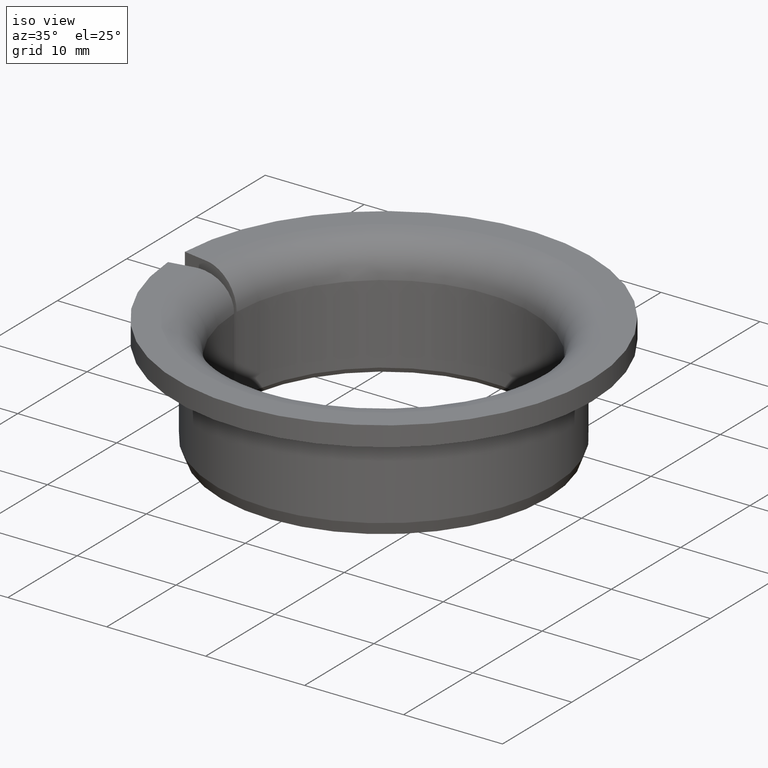
[diagram: clean part render]
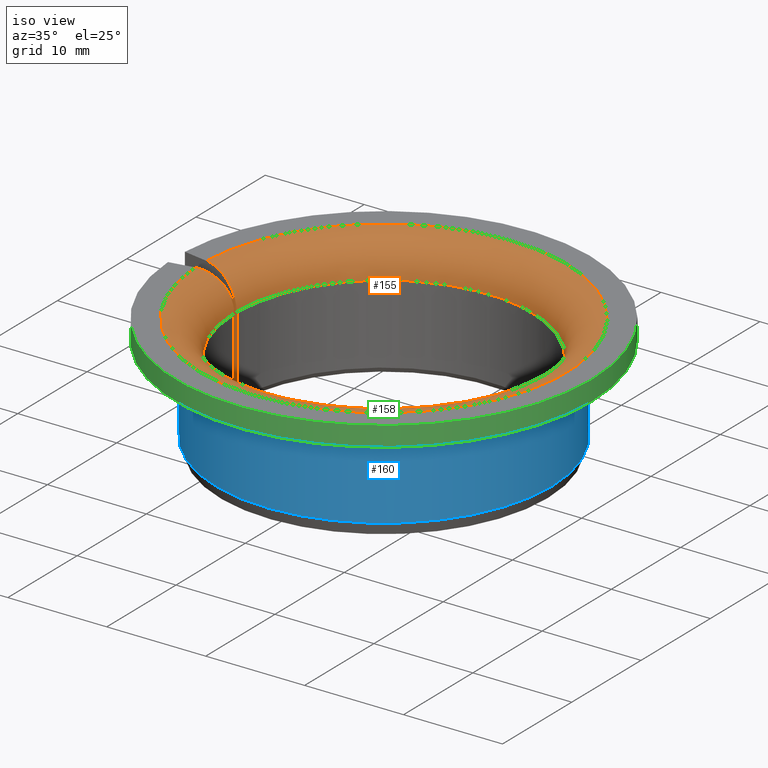
[diagram: same view with three faces highlighted in distinct colors, each labeled with its STEP entity id]
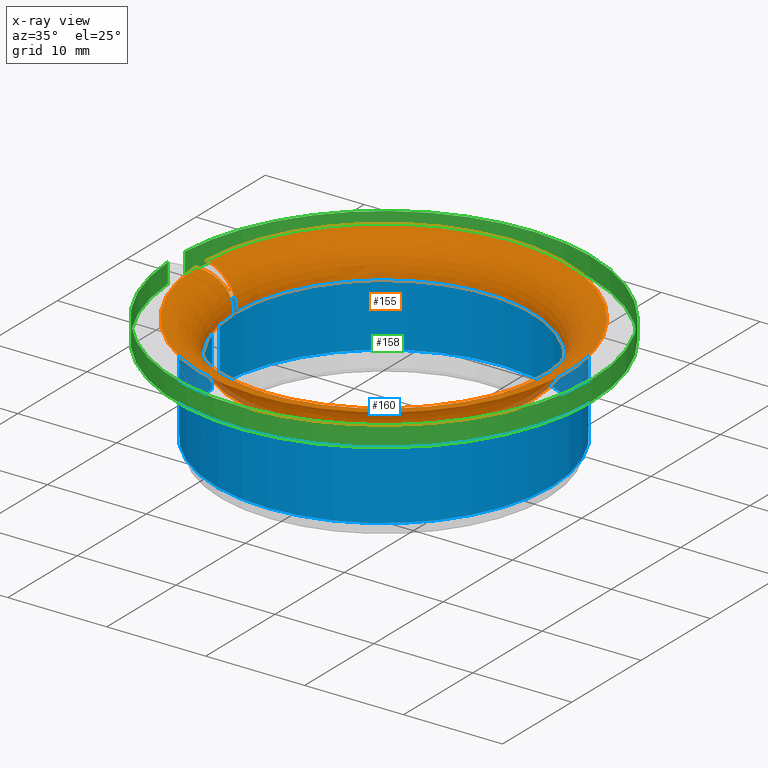
[diagram: x-ray of the same camera — body ghosted, the three highlighted faces saturated]
A machine part, iso view with three faces highlighted in distinct colors.
The next image is the same camera in x-ray (body ghosted, the three faces saturated) — at least one of them is partly hidden behind the body in this view.
Their STEP definitions:

[orange] entity #155 — the highlighted toroidal blend (fillet) surface has major radius 18.5 mm and minor (blend) radius 3.5 mm.
#155=ADVANCED_FACE('',(#171),#172,.T.);
#171=FACE_OUTER_BOUND('',#196,.T.);
#172=TOROIDAL_SURFACE('',#197,0.0185,0.0035);
#196=EDGE_LOOP('',(#236,#237,#238,#239));
#197=AXIS2_PLACEMENT_3D('',#240,#241,#242);
#236=ORIENTED_EDGE('',*,*,#325,.T.);
#237=ORIENTED_EDGE('',*,*,#326,.T.);
#238=ORIENTED_EDGE('',*,*,#327,.F.);
#239=ORIENTED_EDGE('',*,*,#312,.F.);
#240=CARTESIAN_POINT('',(0.0,0.0,0.0085));
#241=DIRECTION('',(0.0,-6.12323399573677E-017,-1.0));
#242=DIRECTION('',(0.0,1.0,-6.12323399573677E-017));
#312=EDGE_CURVE('',#342,#343,#344,.T.);
#325=EDGE_CURVE('',#342,#367,#368,.T.);
#326=EDGE_CURVE('',#367,#369,#370,.T.);
#327=EDGE_CURVE('',#343,#369,#371,.T.);
#342=VERTEX_POINT('',#392);
#343=VERTEX_POINT('',#393);
#344=B_SPLINE_CURVE_WITH_KNOTS('',3,(#394,#395,#396,#397,#398,#399,#400,#401,#402,#403,#404,#405,#406,#407,#408,#409,#410,#411),.UNSPECIFIED.,.F.,.F.,(4,2,2,2,2,2,2,2,4),(1.97144236282137E-007,0.000687247596506066,0.00137429804877585,0.00206134850104563,0.00274839895331542,0.00343544940558521,0.00412249985785499,0.00480955031012478,0.00549660076239457),.UNSPECIFIED.);
#367=VERTEX_POINT('',#462);
#368=CIRCLE('',#463,0.015);
#369=VERTEX_POINT('',#464);
#370=B_SPLINE_CURVE_WITH_KNOTS('',3,(#465,#466,#467,#468,#469,#470,#471,#472,#473,#474,#475,#476,#477,#478,#479,#480,#481,#482),.UNSPECIFIED.,.F.,.F.,(4,2,2,2,2,2,2,2,4),(1.97144236282137E-007,0.000687247596506066,0.00137429804877585,0.00206134850104563,0.00274839895331542,0.00343544940558521,0.00412249985785499,0.00480955031012478,0.00549660076239457),.UNSPECIFIED.);
#371=CIRCLE('',#483,0.0185);
#392=CARTESIAN_POINT('',(0.0149989657335363,-0.000176144611625668,0.0085));
#393=CARTESIAN_POINT('',(0.0184831036944218,-0.000790492138640356,0.012));
#394=CARTESIAN_POINT('',(0.0149989657335363,-0.000176144611625669,0.0085));
#395=CARTESIAN_POINT('',(0.0149989657335363,-0.000176144611625669,0.00873233312745845));
#396=CARTESIAN_POINT('',(0.0150218251591391,-0.000180175345122953,0.00896070174709985));
#397=CARTESIAN_POINT('',(0.0151113105902479,-0.000195954041007761,0.00940984855295852));
#398=CARTESIAN_POINT('',(0.0151790704267163,-0.00020790192838552,0.00963300694570902));
#399=CARTESIAN_POINT('',(0.01535538900741,-0.000238991651362049,0.0100575433301665));
#400=CARTESIAN_POINT('',(0.0154631871915511,-0.000257999379697507,0.0102587635129356));
#401=CARTESIAN_POINT('',(0.0157175991445166,-0.000302859071220061,0.0106393678753234));
#402=CARTESIAN_POINT('',(0.0158652095137595,-0.000328886761949921,0.0108189869323458));
#403=CARTESIAN_POINT('',(0.0161870816681597,-0.000385641507109437,0.0111407423658677));
#404=CARTESIAN_POINT('',(0.0163625899243057,-0.000416588348005069,0.0112851110798836));
#405=CARTESIAN_POINT('',(0.0167434554889728,-0.000483745223078637,0.0115400321452818));
#406=CARTESIAN_POINT('',(0.0169448821256551,-0.000519262173759086,0.011647659050552));
#407=CARTESIAN_POINT('',(0.0173623716562547,-0.000592876842167113,0.0118211775577084));
#408=CARTESIAN_POINT('',(0.0175811168932857,-0.000631447529357148,0.0118880550374962));
#409=CARTESIAN_POINT('',(0.0180283854044057,-0.000710313035488916,0.0119775223235684));
#410=CARTESIAN_POINT('',(0.0182544947009641,-0.000750182205061158,0.012));
#411=CARTESIAN_POINT('',(0.0184831036944218,-0.000790492138640355,0.012));
#462=CARTESIAN_POINT('',(0.0149989657335363,0.000176144611625669,0.0085));
#463=AXIS2_PLACEMENT_3D('',#538,#539,#540);
#464=CARTESIAN_POINT('',(0.0184831036944218,0.000790492138640358,0.012));
#465=CARTESIAN_POINT('',(0.0149989657335363,0.000176144611625669,0.0085));
#466=CARTESIAN_POINT('',(0.0149989657335363,0.000176144611625669,0.00873233312745845));
#467=CARTESIAN_POINT('',(0.0150218251591391,0.000180175345122953,0.00896070174709985));
#468=CARTESIAN_POINT('',(0.0151113105902479,0.000195954041007761,0.00940984855295852));
#469=CARTESIAN_POINT('',(0.0151790704267163,0.00020790192838552,0.00963300694570902));
#470=CARTESIAN_POINT('',(0.01535538900741,0.00023899165136205,0.0100575433301665));
#471=CARTESIAN_POINT('',(0.0154631871915511,0.000257999379697507,0.0102587635129356));
#472=CARTESIAN_POINT('',(0.0157175991445166,0.000302859071220061,0.0106393678753234));
#473=CARTESIAN_POINT('',(0.0158652095137595,0.000328886761949921,0.0108189869323458));
#474=CARTESIAN_POINT('',(0.0161870816681597,0.000385641507109437,0.0111407423658677));
#475=CARTESIAN_POINT('',(0.0163625899243057,0.000416588348005069,0.0112851110798836));
#476=CARTESIAN_POINT('',(0.0167434554889728,0.000483745223078637,0.0115400321452818));
#477=CARTESIAN_POINT('',(0.0169448821256551,0.000519262173759086,0.011647659050552));
#478=CARTESIAN_POINT('',(0.0173623716562547,0.000592876842167113,0.0118211775577084));
#479=CARTESIAN_POINT('',(0.0175811168932857,0.000631447529357148,0.0118880550374962));
#480=CARTESIAN_POINT('',(0.0180283854044057,0.000710313035488916,0.0119775223235684));
#481=CARTESIAN_POINT('',(0.0182544947009641,0.000750182205061157,0.012));
#482=CARTESIAN_POINT('',(0.0184831036944218,0.000790492138640354,0.012));
#483=AXIS2_PLACEMENT_3D('',#541,#542,#543);
#538=CARTESIAN_POINT('',(0.0,0.0,0.0085));
#539=DIRECTION('',(0.0,-6.12323399573677E-017,-1.0));
#540=DIRECTION('',(0.0,1.0,-6.12323399573677E-017));
#541=CARTESIAN_POINT('',(0.0,0.0,0.012));
#542=DIRECTION('',(0.0,-6.12323399573677E-017,-1.0));
#543=DIRECTION('',(0.0,1.0,-6.12323399573677E-017));

[blue] entity #160 — the highlighted cylindrical surface (partial cylindrical patch) has radius 17 mm, axis along (-0, 0, -1).
#160=ADVANCED_FACE('',(#181),#182,.T.);
#181=FACE_OUTER_BOUND('',#206,.T.);
#182=CYLINDRICAL_SURFACE('',#207,0.017);
#206=EDGE_LOOP('',(#271,#272,#273,#274));
#207=AXIS2_PLACEMENT_3D('',#275,#276,#277);
#271=ORIENTED_EDGE('',*,*,#330,.T.);
#272=ORIENTED_EDGE('',*,*,#336,.T.);
#273=ORIENTED_EDGE('',*,*,#337,.F.);
#274=ORIENTED_EDGE('',*,*,#317,.F.);
#275=CARTESIAN_POINT('',(0.0,0.0,0.0));
#276=DIRECTION('',(0.0,-6.12323399573677E-017,-1.0));
#277=DIRECTION('',(0.0,1.0,-6.12323399573677E-017));
#317=EDGE_CURVE('',#351,#353,#354,.T.);
#330=EDGE_CURVE('',#351,#374,#376,.T.);
#336=EDGE_CURVE('',#374,#384,#385,.T.);
#337=EDGE_CURVE('',#353,#384,#386,.T.);
#351=VERTEX_POINT('',#421);
#353=VERTEX_POINT('',#436);
#354=LINE('',#437,#438);
#374=VERTEX_POINT('',#486);
#376=CIRCLE('',#501,0.017);
#384=VERTEX_POINT('',#512);
#385=LINE('',#513,#514);
#386=CIRCLE('',#515,0.017);
#421=CARTESIAN_POINT('',(0.0169918128628631,-0.000527537328953403,0.0085));
#436=CARTESIAN_POINT('',(0.0169918128628632,-0.000527537328953403,0.0012));
#437=CARTESIAN_POINT('',(0.0169918128628631,-0.000527537328953403,1.78901200885371E-019));
#438=VECTOR('',#529,1.0);
#486=CARTESIAN_POINT('',(0.0169918128628631,0.000527537328953405,0.0085));
#501=AXIS2_PLACEMENT_3D('',#547,#548,#549);
#512=CARTESIAN_POINT('',(0.0169918128628631,0.000527537328953404,0.0012));
#513=CARTESIAN_POINT('',(0.0169918128628631,0.000527537328953404,-1.87878580240041E-019));
#514=VECTOR('',#559,1.0);
#515=AXIS2_PLACEMENT_3D('',#560,#561,#562);
#529=DIRECTION('',(0.0,-6.12323399573677E-017,-1.0));
#547=CARTESIAN_POINT('',(0.0,0.0,0.0085));
#548=DIRECTION('',(0.0,-6.12323399573677E-017,-1.0));
#549=DIRECTION('',(0.0,1.0,-6.12323399573677E-017));
#559=DIRECTION('',(0.0,-6.12323399573677E-017,-1.0));
#560=CARTESIAN_POINT('',(0.0,0.0,0.0012));
#561=DIRECTION('',(0.0,-6.12323399573677E-017,-1.0));
#562=DIRECTION('',(0.0,1.0,-6.12323399573677E-017));

[green] entity #158 — the highlighted cylindrical surface (partial cylindrical patch) has radius 21 mm, axis along (-0, 0, -1).
#158=ADVANCED_FACE('',(#177),#178,.T.);
#177=FACE_OUTER_BOUND('',#202,.T.);
#178=CYLINDRICAL_SURFACE('',#203,0.021);
#202=EDGE_LOOP('',(#257,#258,#259,#260));
#203=AXIS2_PLACEMENT_3D('',#261,#262,#263);
#257=ORIENTED_EDGE('',*,*,#333,.T.);
#258=ORIENTED_EDGE('',*,*,#334,.T.);
#259=ORIENTED_EDGE('',*,*,#331,.F.);
#260=ORIENTED_EDGE('',*,*,#314,.F.);
#261=CARTESIAN_POINT('',(0.0,0.0,0.0));
#262=DIRECTION('',(0.0,-6.12323399573677E-017,-1.0));
#263=DIRECTION('',(0.0,1.0,-6.12323399573677E-017));
#314=EDGE_CURVE('',#345,#347,#348,.T.);
#331=EDGE_CURVE('',#347,#377,#378,.T.);
#333=EDGE_CURVE('',#345,#380,#381,.T.);
#334=EDGE_CURVE('',#380,#377,#382,.T.);
#345=VERTEX_POINT('',#412);
#347=VERTEX_POINT('',#415);
#348=LINE('',#416,#417);
#377=VERTEX_POINT('',#502);
#378=CIRCLE('',#503,0.021);
#380=VERTEX_POINT('',#506);
#381=CIRCLE('',#507,0.021);
#382=LINE('',#508,#509);
#412=CARTESIAN_POINT('',(0.0209640676250138,-0.00122795301776826,0.012));
#415=CARTESIAN_POINT('',(0.0209640676250138,-0.00122795301776826,0.01));
#416=CARTESIAN_POINT('',(0.0209640676250138,-0.00122795301776826,2.21789292454356E-019));
#417=VECTOR('',#527,1.0);
#502=CARTESIAN_POINT('',(0.0209640676250138,0.00122795301776826,0.01));
#503=AXIS2_PLACEMENT_3D('',#550,#551,#552);
#506=CARTESIAN_POINT('',(0.0209640676250138,0.00122795301776827,0.012));
#507=AXIS2_PLACEMENT_3D('',#554,#555,#556);
#508=CARTESIAN_POINT('',(0.0209640676250138,0.00122795301776826,-2.30766671809025E-019));
#509=VECTOR('',#557,1.0);
#527=DIRECTION('',(0.0,-6.12323399573677E-017,-1.0));
#550=CARTESIAN_POINT('',(0.0,0.0,0.01));
#551=DIRECTION('',(0.0,-6.12323399573677E-017,-1.0));
#552=DIRECTION('',(0.0,1.0,-6.12323399573677E-017));
#554=CARTESIAN_POINT('',(0.0,0.0,0.012));
#555=DIRECTION('',(0.0,-6.12323399573677E-017,-1.0));
#556=DIRECTION('',(0.0,1.0,-6.12323399573677E-017));
#557=DIRECTION('',(0.0,-6.12323399573677E-017,-1.0));